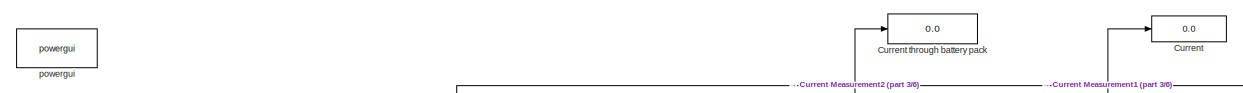
[diagram: root canvas - part 1/6, top left region]
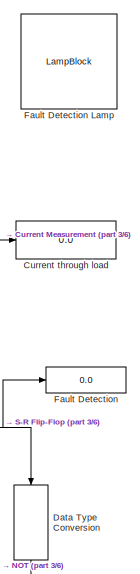
[diagram: root canvas - part 2/6, top right region]
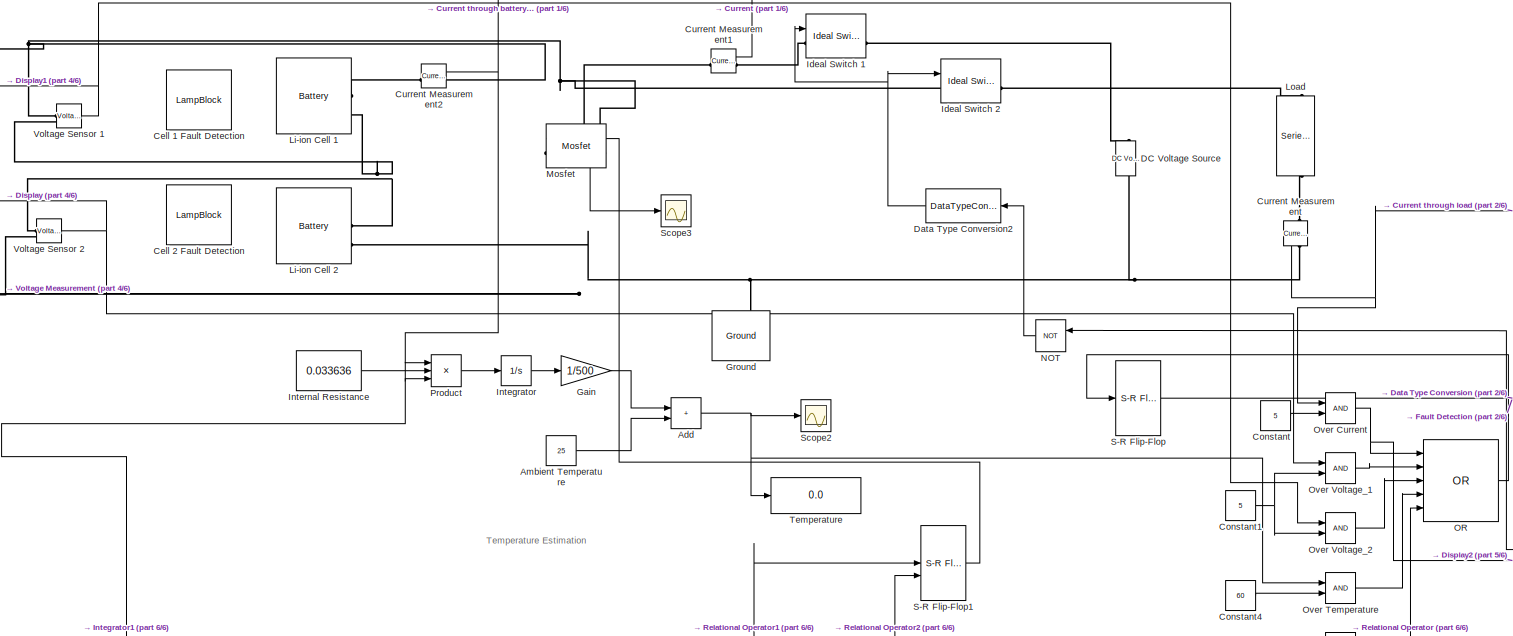
[diagram: root canvas - part 3/6, central region]
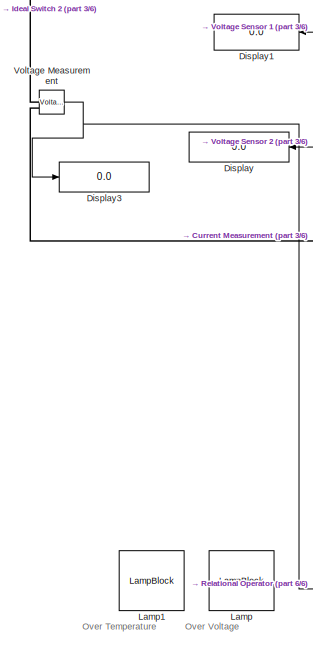
[diagram: root canvas - part 4/6, middle left region]
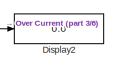
[diagram: root canvas - part 5/6, middle right region]
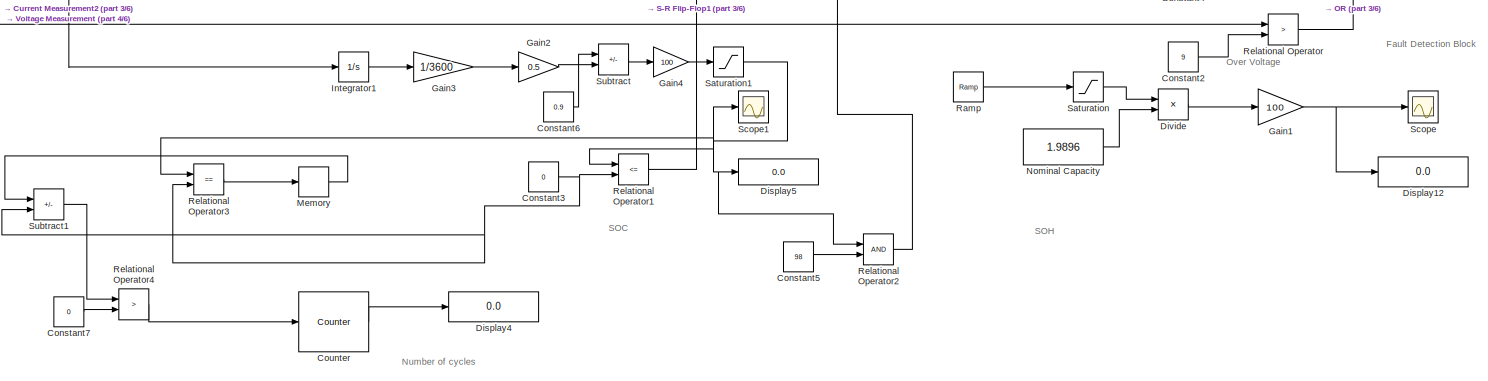
[diagram: root canvas - part 6/6, bottom center region]
MODEL slx_e2e8afc41326
KIND model
CONFIG AbsTol = auto
CONFIG EnableMultiTasking = off
CONFIG FixedStep = auto
CONFIG MaxStep = auto
CONFIG MinStep = auto
CONFIG RelTol = 1e-3
CONFIG SampleTimeConstraint = Unconstrained
CONFIG SolverName = VariableStepAuto
CONFIG StartTime = 0.0
CONFIG StopTime = 10000
WORKSPACE source: mxarray member
WORKSPACE ini = 0
BLOCK [Sum] Add
  IconShape = rectangular
BLOCK [Constant] Ambient Temperature
  Value = 25
BLOCK [LampBlock] Cell 1 Fault Detection 
  LabelPosition = Hide
BLOCK [LampBlock] Cell 2 Fault Detection
  LabelPosition = Hide
BLOCK [Constant] Constant
  Value = 5
BLOCK [Constant] Constant1
  Value = 5
BLOCK [Constant] Constant2
  Value = 9
BLOCK [Constant] Constant3
  Value = 0
BLOCK [Constant] Constant4
  Value = 60
BLOCK [Constant] Constant5
  Value = 98
BLOCK [Constant] Constant6
  Value = 0.9
BLOCK [Constant] Constant7
  Value = 0
BLOCK [Reference] Counter  REF=dspswit3/Counter
  SourceBlock = dspswit3/Counter
  SourceType = Counter
BLOCK [Display] Current 
  Decimation = 1
BLOCK [Reference] Current Measurement  REF=spsCurrentMeasurementLib/Current Measurement
  LibrarySourceBlock = sps_lib/Sensors and Measurements/Current Measurement
  NameLocation = left
  SourceBlock = spsCurrentMeasurementLib/Current Measurement
  SourceType = Current Measurement
  UserDataPersistent = on
BLOCK [Reference] Current Measurement1  REF=spsCurrentMeasurementLib/Current Measurement
  LibrarySourceBlock = sps_lib/Sensors and Measurements/Current Measurement
  SourceBlock = spsCurrentMeasurementLib/Current Measurement
  SourceType = Current Measurement
  UserDataPersistent = on
BLOCK [Reference] Current Measurement2  REF=spsCurrentMeasurementLib/Current Measurement
  LibrarySourceBlock = sps_lib/Sensors and Measurements/Current Measurement
  SourceBlock = spsCurrentMeasurementLib/Current Measurement
  SourceType = Current Measurement
  UserDataPersistent = on
BLOCK [Display] Current through battery pack
  Decimation = 1
BLOCK [Display] Current through load
  Decimation = 1
BLOCK [Reference] DC Voltage Source  REF=spsDCVoltageSourceLib/DC Voltage Source
  LibrarySourceBlock = sps_lib/Sources/DC Voltage Source
  SourceBlock = spsDCVoltageSourceLib/DC Voltage Source
  SourceType = DC Voltage Source
BLOCK [DataTypeConversion] Data Type Conversion
  NameLocation = left
  OutDataTypeStr = double
  RndMeth = Floor
BLOCK [DataTypeConversion] Data Type Conversion2
  NameLocation = top
  OutDataTypeStr = double
  RndMeth = Floor
BLOCK [Display] Display
  Decimation = 1
  NameLocation = top
BLOCK [Display] Display1
  Decimation = 1
  NameLocation = top
BLOCK [Display] Display12
  Decimation = 1
BLOCK [Display] Display2
  Decimation = 1
BLOCK [Display] Display3
  Decimation = 1
BLOCK [Display] Display4
  Decimation = 1
BLOCK [Display] Display5
  Decimation = 1
BLOCK [Product] Divide
  Inputs = */
BLOCK [Display] Fault Detection
  Decimation = 1
BLOCK [LampBlock] Fault Detection Lamp
  LabelPosition = Hide
BLOCK [Gain] Gain
  Gain = 1/500
BLOCK [Gain] Gain1
  Gain = 100
BLOCK [Gain] Gain2
  Gain = 0.5
BLOCK [Gain] Gain3
  Gain = 1/3600
BLOCK [Gain] Gain4
  Gain = 100
BLOCK [Reference] Ground  REF=spsGroundLib/Ground
  LibrarySourceBlock = sps_lib/Utilities/Ground
  NameLocation = right
  SourceBlock = spsGroundLib/Ground
  SourceType = Ground
BLOCK [Reference] Ideal Switch 1  REF=spsIdealSwitchLib/Ideal Switch
  LibrarySourceBlock = sps_lib/Power Electronics/Ideal Switch
  SourceBlock = spsIdealSwitchLib/Ideal Switch
  SourceType = Ideal Switch
BLOCK [Reference] Ideal Switch 2  REF=spsIdealSwitchLib/Ideal Switch
  LibrarySourceBlock = sps_lib/Power Electronics/Ideal Switch
  SourceBlock = spsIdealSwitchLib/Ideal Switch
  SourceType = Ideal Switch
BLOCK [Integrator] Integrator
BLOCK [Integrator] Integrator1
BLOCK [Constant] Internal Resistance
  Value = 0.033636
BLOCK [LampBlock] Lamp
  LabelPosition = Hide
BLOCK [LampBlock] Lamp1
  LabelPosition = Hide
BLOCK [Reference] Li-ion Cell 1  REF=spsBatteryLib/Battery
  LibrarySourceBlock = sps_lib/Sources/Battery
  SourceBlock = spsBatteryLib/Battery
  SourceType = Battery
BLOCK [Reference] Li-ion Cell 2  REF=spsBatteryLib/Battery
  LibrarySourceBlock = sps_lib/Sources/Battery
  SourceBlock = spsBatteryLib/Battery
  SourceType = Battery
BLOCK [Reference] Load  REF=spsSeriesRLCBranchLib/Series RLC Branch
  LibrarySourceBlock = sps_lib/Passives/Series RLC Branch
  NameLocation = left
  SourceBlock = spsSeriesRLCBranchLib/Series RLC Branch
  SourceType = Series RLC Branch
BLOCK [Memory] Memory
BLOCK [Reference] Mosfet  REF=spsMosfetLib/Mosfet
  LibrarySourceBlock = sps_lib/Power Electronics/Mosfet
  NameLocation = top
  SourceBlock = spsMosfetLib/Mosfet
  SourceType = Mosfet
BLOCK [Logic] NOT
  AllPortsSameDT = off
  IconShape = distinctive
  NameLocation = top
  Operator = NOT
  OutDataTypeStr = boolean
BLOCK [Constant] Nominal Capacity
  Value = 1.9896
BLOCK [Logic] OR
  AllPortsSameDT = off
  IconShape = distinctive
  Inputs = 5
  Operator = OR
  OutDataTypeStr = boolean
BLOCK [RelationalOperator] Over Current 
  InputSameDT = off
  OutDataTypeStr = boolean
  RndMeth = Simplest
BLOCK [RelationalOperator] Over Temperature
  InputSameDT = off
  OutDataTypeStr = boolean
  RndMeth = Simplest
BLOCK [RelationalOperator] Over Voltage_1
  InputSameDT = off
  OutDataTypeStr = boolean
  RndMeth = Simplest
BLOCK [RelationalOperator] Over Voltage_2
  InputSameDT = off
  OutDataTypeStr = boolean
  RndMeth = Simplest
BLOCK [Product] Product
  Inputs = 3
BLOCK [Reference] Ramp  REF=simulink/Sources/Ramp
  SourceBlock = simulink/Sources/Ramp
  SourceType = Ramp
BLOCK [RelationalOperator] Relational Operator
  InputSameDT = off
  Operator = >
  OutDataTypeStr = boolean
  RndMeth = Simplest
BLOCK [RelationalOperator] Relational Operator1
  InputSameDT = off
  Operator = <=
  OutDataTypeStr = boolean
  RndMeth = Simplest
BLOCK [RelationalOperator] Relational Operator2
  InputSameDT = off
  OutDataTypeStr = boolean
  RndMeth = Simplest
BLOCK [RelationalOperator] Relational Operator3
  InputSameDT = off
  Operator = ==
  OutDataTypeStr = boolean
  RndMeth = Simplest
BLOCK [RelationalOperator] Relational Operator4
  InputSameDT = off
  Operator = >
  OutDataTypeStr = boolean
  RndMeth = Simplest
BLOCK [Reference] S-R Flip-Flop  REF=simulink_extras/Flip Flops/S-R
Flip-Flop
  SourceBlock = simulink_extras/Flip Flops/S-R\nFlip-Flop
  SourceType = SRFlipFlop
BLOCK [Reference] S-R Flip-Flop1  REF=simulink_extras/Flip Flops/S-R
Flip-Flop
  SourceBlock = simulink_extras/Flip Flops/S-R\nFlip-Flop
  SourceType = SRFlipFlop
BLOCK [Saturate] Saturation
  LowerLimit = 0
  UpperLimit = 1.9896
BLOCK [Saturate] Saturation1
  LowerLimit = 0
  UpperLimit = 100
BLOCK [Scope] Scope
  Floating = off
  NumInputPorts = 1
  ScopeSpecificationString = Simulink.scopes.TimeScopeBlockCfg('CurrentConfiguration', extmgr.ConfigurationSet(extmgr.Configuration('Core','General UI',true),extmgr.Configuration('Core','Source UI',true),extmgr.Configuration('Sources','WiredSimulink',true),extmgr.Configuration('Visuals','Time Domain',true,'SerializedDisplays',{struct('MinYLimReal','6.25','MaxYLimReal','110.41667','YLabelReal','','MinYLimMag','6.25','MaxYLimMa...<+1437ch>
BLOCK [Scope] Scope1
  Floating = off
  NumInputPorts = 1
  ScopeSpecificationString = Simulink.scopes.TimeScopeBlockCfg('CurrentConfiguration', extmgr.ConfigurationSet(extmgr.Configuration('Core','General UI',true),extmgr.Configuration('Core','Source UI',true),extmgr.Configuration('Sources','WiredSimulink',true,'DataLoggingVariableName','ScopeData1'),extmgr.Configuration('Visuals','Time Domain',true,'SerializedDisplays',{struct('MinYLimReal','-12.45113','MaxYLimReal','112.06013','Y...<+1569ch>
BLOCK [Scope] Scope2
  Floating = off
  NumInputPorts = 1
  ScopeSpecificationString = Simulink.scopes.TimeScopeBlockCfg('CurrentConfiguration', extmgr.ConfigurationSet(extmgr.Configuration('Core','General UI',true),extmgr.Configuration('Core','Source UI',true),extmgr.Configuration('Sources','WiredSimulink',true,'DataLoggingVariableName','ScopeData1'),extmgr.Configuration('Visuals','Time Domain',true,'SerializedDisplays',{struct('MinYLimReal','23.62574','MaxYLimReal','37.36833','YLa...<+1486ch>
BLOCK [Scope] Scope3
  Floating = off
  NumInputPorts = 1
  ScopeSpecificationString = Simulink.scopes.TimeScopeBlockCfg('CurrentConfiguration', extmgr.ConfigurationSet(extmgr.Configuration('Core','General UI',true),extmgr.Configuration('Core','Source UI',true),extmgr.Configuration('Sources','WiredSimulink',true,'DataLoggingVariableName','ScopeData1'),extmgr.Configuration('Visuals','Time Domain',true,'SerializedDisplays',{struct('MinYLimReal','-4.86583','MaxYLimReal','43.79245','YLa...<+1551ch>
BLOCK [Sum] Subtract
  IconShape = rectangular
  Inputs = +-
BLOCK [Sum] Subtract1
  IconShape = rectangular
  Inputs = +-
BLOCK [Display] Temperature
  Decimation = 1
BLOCK [Reference] Voltage Measurement  REF=spsVoltageMeasurementLib/Voltage Measurement
  LibrarySourceBlock = sps_lib/Sensors and Measurements/Voltage Measurement
  SourceBlock = spsVoltageMeasurementLib/Voltage Measurement
  SourceType = Voltage Measurement
  UserDataPersistent = on
BLOCK [Reference] Voltage Sensor 1  REF=spsVoltageMeasurementLib/Voltage Measurement
  LibrarySourceBlock = sps_lib/Sensors and Measurements/Voltage Measurement
  SourceBlock = spsVoltageMeasurementLib/Voltage Measurement
  SourceType = Voltage Measurement
  UserDataPersistent = on
BLOCK [Reference] Voltage Sensor 2  REF=spsVoltageMeasurementLib/Voltage Measurement
  LibrarySourceBlock = sps_lib/Sensors and Measurements/Voltage Measurement
  SourceBlock = spsVoltageMeasurementLib/Voltage Measurement
  SourceType = Voltage Measurement
  UserDataPersistent = on
BLOCK [Reference] powergui  REF=sps_lib/powergui
  LibrarySourceBlock = sps_lib/powergui
  Priority = 1
  SourceBlock = sps_lib/powergui
  SourceType = PSB option menu block
ANNOTATION (root): Fault Detection Block
ANNOTATION (root): Number of cycles
ANNOTATION (root): Temperature Estimation
ANNOTATION (root): SOH
ANNOTATION (root): SOC
ANNOTATION (root): Over Temperature
ANNOTATION (root): Over Voltage
NET Add:1 -> Over Temperature:1, Scope2:1, Temperature:1
LINE Ambient Temperature:1 -> Add:2
NET Constant1:1 -> Over Voltage_1:2, Over Voltage_2:2
LINE Constant2:1 -> Relational Operator:2
NET Constant3:1 -> Relational Operator1:2, Relational Operator3:2, Subtract1:2
LINE Constant4:1 -> Over Temperature:2
LINE Constant5:1 -> Relational Operator2:2
LINE Constant6:1 -> Subtract:1
LINE Constant7:1 -> Relational Operator4:2
LINE Constant:1 -> Over Current :2
LINE Counter:1 -> Display4:1
LINE Current Measurement1:1 -> Current :1
NET Current Measurement2:1 -> Current through battery pack:1, Integrator1:1, Product:1, Product:3
NET Current Measurement:1 -> Current through load:1, Over Current :1
NET Data Type Conversion2:1 -> Ideal Switch 1:1, Ideal Switch 2:1
LINE Data Type Conversion:1 -> NOT:1
LINE Divide:1 -> Gain1:1
NET Gain1:1 -> Display12:1, Scope:1
LINE Gain2:1 -> Subtract:2
LINE Gain3:1 -> Gain2:1
LINE Gain4:1 -> Saturation1:1
LINE Gain:1 -> Add:1
LINE Integrator1:1 -> Gain3:1
LINE Integrator:1 -> Gain:1
LINE Internal Resistance:1 -> Product:2
LINE Memory:1 -> Subtract1:1
LINE Mosfet:1 -> Scope3:1
LINE NOT:1 -> Data Type Conversion2:1
LINE Nominal Capacity:1 -> Divide:2
LINE OR:1 -> S-R Flip-Flop:1
NET Over Current :1 -> Display2:1, OR:1
LINE Over Temperature:1 -> OR:4
LINE Over Voltage_1:1 -> OR:2
LINE Over Voltage_2:1 -> OR:3
LINE Product:1 -> Integrator:1
LINE Ramp:1 -> Saturation:1
LINE Relational Operator1:1 -> S-R Flip-Flop1:1
LINE Relational Operator2:1 -> S-R Flip-Flop1:2
LINE Relational Operator3:1 -> Memory:1
LINE Relational Operator4:1 -> Counter:1
LINE Relational Operator:1 -> OR:5
LINE S-R Flip-Flop1:1 -> Mosfet:1
NET S-R Flip-Flop:1 -> Data Type Conversion:1, Fault Detection:1
NET Saturation1:1 -> Display5:1, Relational Operator1:1, Relational Operator2:1, Relational Operator3:1, Scope1:1
LINE Saturation:1 -> Divide:1
LINE Subtract1:1 -> Relational Operator4:1
LINE Subtract:1 -> Gain4:1
NET Voltage Measurement:1 -> Display3:1, Relational Operator:1
NET Voltage Sensor 1:1 -> Display1:1, Over Voltage_2:1
NET Voltage Sensor 2:1 -> Display:1, Over Voltage_1:1
PLINE Current Measurement1:LConn1 -- Mosfet:LConn1
PLINE Current Measurement1:RConn1 -- Ideal Switch 1:LConn1
PLINE Current Measurement2:LConn1 -- Li-ion Cell 1:LConn1
PNET net1: Current Measurement2:RConn1 -- Ideal Switch 2:LConn1 -- Mosfet:RConn1 -- Voltage Measurement:LConn1 -- Voltage Sensor 1:LConn1
PLINE Current Measurement:LConn1 -- Load:RConn1
PNET net2: Current Measurement:RConn1 -- DC Voltage Source:LConn1 -- Ground:LConn1 -- Li-ion Cell 2:LConn2 -- Voltage Measurement:LConn2 -- Voltage Sensor 2:LConn2
PLINE DC Voltage Source:RConn1 -- Ideal Switch 1:RConn1
PLINE Ideal Switch 2:RConn1 -- Load:LConn1
PNET net3: Li-ion Cell 1:LConn2 -- Li-ion Cell 2:LConn1 -- Voltage Sensor 1:LConn2 -- Voltage Sensor 2:LConn1
note: NET lines group one-source signal fan-out (src -> all destinations, sorted); 1:1 wires keep LINE; PNET lines group multi-terminal physical nets as a canonical sorted terminal list (undirected conserving connections); 2-terminal nets keep the pairwise PLINE form
